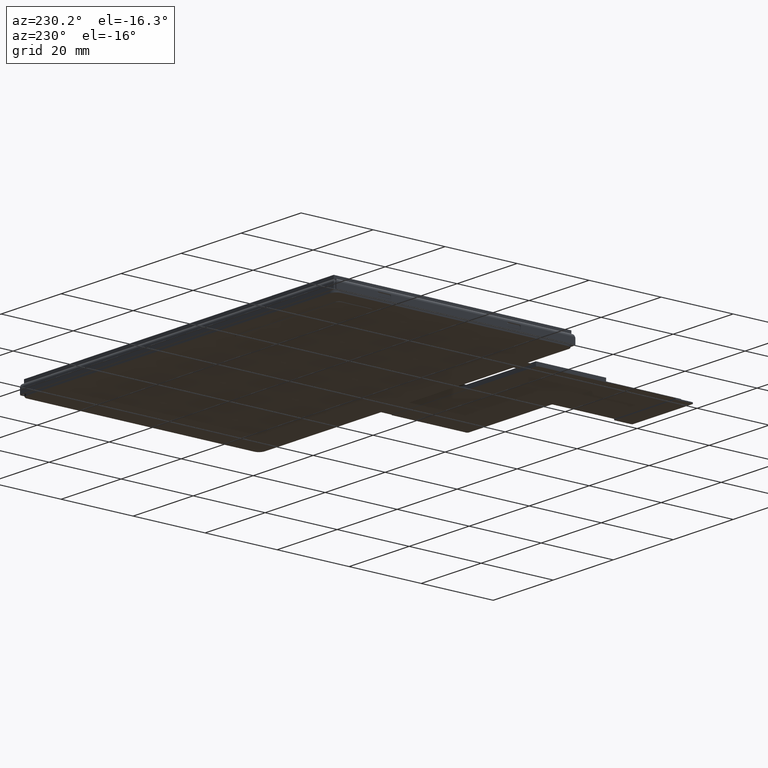
[diagram: clean part render]
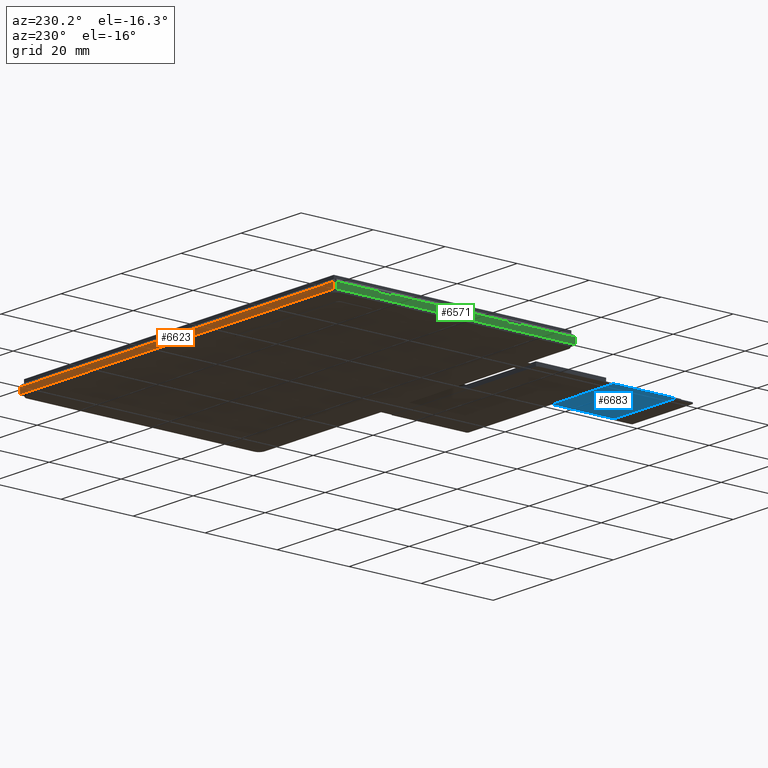
[diagram: same view with three faces highlighted in distinct colors, each labeled with its STEP entity id]
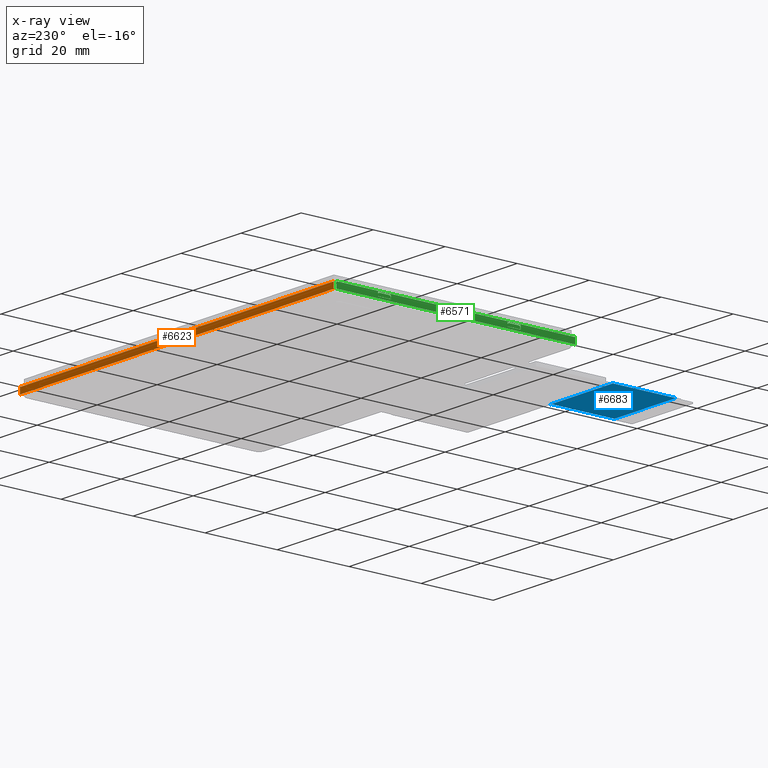
[diagram: x-ray of the same camera — body ghosted, the three highlighted faces saturated]
A machine part, auxiliary view with three faces highlighted in distinct colors.
The next image is the same camera in x-ray (body ghosted, the three faces saturated) — at least one of them is partly hidden behind the body in this view.
Their STEP definitions:

[orange] entity #6623 — the highlighted planar face has unit normal (0, 1, 0).
#149=PLANE('',#7033);
#475=FACE_OUTER_BOUND('',#836,.T.);
#836=EDGE_LOOP('',(#5087,#5088,#5089,#5090));
#1301=LINE('',#9570,#2194);
#1306=LINE('',#9579,#2199);
#1362=LINE('',#9917,#2255);
#1364=LINE('',#9920,#2257);
#2194=VECTOR('',#7740,104.6);
#2199=VECTOR('',#7747,1.67);
#2255=VECTOR('',#7849,1.67);
#2257=VECTOR('',#7853,104.6);
#3125=VERTEX_POINT('',#9568);
#3126=VERTEX_POINT('',#9569);
#3129=VERTEX_POINT('',#9578);
#3154=VERTEX_POINT('',#9837);
#3820=EDGE_CURVE('',#3125,#3126,#1301,.T.);
#3825=EDGE_CURVE('',#3125,#3129,#1306,.T.);
#3885=EDGE_CURVE('',#3126,#3154,#1362,.T.);
#3887=EDGE_CURVE('',#3129,#3154,#1364,.T.);
#5087=ORIENTED_EDGE('',*,*,#3887,.F.);
#5088=ORIENTED_EDGE('',*,*,#3825,.F.);
#5089=ORIENTED_EDGE('',*,*,#3820,.T.);
#5090=ORIENTED_EDGE('',*,*,#3885,.T.);
#6623=ADVANCED_FACE('',(#475),#149,.T.);
#7033=AXIS2_PLACEMENT_3D('',#9919,#7851,#7852);
#7740=DIRECTION('',(-1.,2.16453909658425E-16,0.));
#7747=DIRECTION('',(0.,0.,1.));
#7849=DIRECTION('',(0.,0.,1.));
#7851=DIRECTION('center_axis',(2.16453909658425E-16,1.,0.));
#7852=DIRECTION('ref_axis',(-1.,2.16453909658425E-16,0.));
#7853=DIRECTION('',(-1.,2.16453909658425E-16,0.));
#9568=CARTESIAN_POINT('',(52.2999999999996,31.1779999999999,-3.37));
#9569=CARTESIAN_POINT('',(-52.3000000000003,31.1779999999999,-3.37));
#9570=CARTESIAN_POINT('',(52.2999999999996,31.1779999999999,-3.37));
#9578=CARTESIAN_POINT('',(52.2999999999996,31.1779999999999,-1.7));
#9579=CARTESIAN_POINT('',(52.2999999999996,31.1779999999999,-3.37));
#9837=CARTESIAN_POINT('',(-52.3000000000003,31.1779999999999,-1.7));
#9917=CARTESIAN_POINT('',(-52.3000000000003,31.1779999999999,-3.37));
#9919=CARTESIAN_POINT('Origin',(52.6999999999998,31.1779999999999,-3.37));
#9920=CARTESIAN_POINT('',(52.2999999999996,31.1779999999999,-1.7));

[blue] entity #6683 — the highlighted planar face has unit normal (0, 0, 1).
#187=PLANE('',#7104);
#535=FACE_OUTER_BOUND('',#898,.T.);
#898=EDGE_LOOP('',(#5400,#5401,#5402,#5403,#5404));
#1448=LINE('',#10825,#2341);
#1460=LINE('',#10852,#2353);
#1464=LINE('',#10862,#2357);
#1465=LINE('',#10863,#2358);
#2341=VECTOR('',#8059,21.65);
#2353=VECTOR('',#8083,20.9);
#2357=VECTOR('',#8095,10.);
#2358=VECTOR('',#8096,22.05);
#2924=CIRCLE('',#7097,0.4);
#3195=VERTEX_POINT('',#10795);
#3206=VERTEX_POINT('',#10822);
#3207=VERTEX_POINT('',#10824);
#3210=VERTEX_POINT('',#10832);
#3218=VERTEX_POINT('',#10861);
#3997=EDGE_CURVE('',#3206,#3207,#1448,.T.);
#4003=EDGE_CURVE('',#3210,#3207,#2924,.T.);
#4012=EDGE_CURVE('',#3195,#3210,#1460,.T.);
#4017=EDGE_CURVE('',#3206,#3218,#1464,.T.);
#4018=EDGE_CURVE('',#3195,#3218,#1465,.T.);
#5400=ORIENTED_EDGE('',*,*,#4017,.T.);
#5401=ORIENTED_EDGE('',*,*,#4018,.F.);
#5402=ORIENTED_EDGE('',*,*,#4012,.T.);
#5403=ORIENTED_EDGE('',*,*,#4003,.T.);
#5404=ORIENTED_EDGE('',*,*,#3997,.F.);
#6683=ADVANCED_FACE('',(#535),#187,.F.);
#7097=AXIS2_PLACEMENT_3D('',#10836,#8068,#8069);
#7104=AXIS2_PLACEMENT_3D('',#10860,#8093,#8094);
#8059=DIRECTION('',(2.16453909658425E-16,1.,0.));
#8068=DIRECTION('center_axis',(0.,0.,1.));
#8069=DIRECTION('ref_axis',(2.16453909658425E-16,1.,0.));
#8083=DIRECTION('',(1.,-2.16453909658425E-16,0.));
#8093=DIRECTION('center_axis',(0.,0.,1.));
#8094=DIRECTION('ref_axis',(1.,-2.16453909658425E-16,0.));
#8095=DIRECTION('',(-1.,2.16453909658425E-16,0.));
#8096=DIRECTION('',(-2.16453909658425E-16,-1.,0.));
#10795=CARTESIAN_POINT('',(-34.1900000000001,-61.421999999753,-3.00000000000001));
#10822=CARTESIAN_POINT('',(-13.6900000000003,-78.8719999997501,-3.00000000000001));
#10824=CARTESIAN_POINT('',(-13.6900000000003,-61.8219999997531,-3.00000000000001));
#10825=CARTESIAN_POINT('',(-13.6900000000003,-83.47199999975,-3.00000000000001));
#10832=CARTESIAN_POINT('',(-13.2900000000004,-61.421999999753,-3.00000000000001));
#10836=CARTESIAN_POINT('Origin',(-13.2900000000004,-61.8219999997531,-3.00000000000001));
#10852=CARTESIAN_POINT('',(-34.1900000000001,-61.421999999753,-3.00000000000001));
#10860=CARTESIAN_POINT('Origin',(-11.0000000000002,-52.6707898480001,-3.00000000000001));
#10861=CARTESIAN_POINT('',(-34.1900000000001,-78.8719999997501,-3.00000000000001));
#10862=CARTESIAN_POINT('',(-22.595,-78.8719999997502,-3.00000000000001));
#10863=CARTESIAN_POINT('',(-34.1900000000001,-61.421999999753,-3.00000000000001));

[green] entity #6571 — the highlighted planar face has unit normal (1, -0, 0).
#56=FACE_BOUND('',#781,.T.);
#57=FACE_BOUND('',#782,.T.);
#106=PLANE('',#6966);
#423=FACE_OUTER_BOUND('',#780,.T.);
#780=EDGE_LOOP('',(#4811,#4812,#4813,#4814));
#781=EDGE_LOOP('',(#4815,#4816,#4817,#4818,#4819,#4820,#4821,#4822,#4823,
#4824));
#782=EDGE_LOOP('',(#4825,#4826,#4827,#4828,#4829,#4830,#4831,#4832,#4833,
#4834));
#1225=LINE('',#9366,#2118);
#1226=LINE('',#9368,#2119);
#1227=LINE('',#9370,#2120);
#1228=LINE('',#9371,#2121);
#1229=LINE('',#9374,#2122);
#1230=LINE('',#9376,#2123);
#1231=LINE('',#9380,#2124);
#1232=LINE('',#9384,#2125);
#1233=LINE('',#9386,#2126);
#1234=LINE('',#9388,#2127);
#1235=LINE('',#9390,#2128);
#1236=LINE('',#9391,#2129);
#1237=LINE('',#9394,#2130);
#1238=LINE('',#9396,#2131);
#1239=LINE('',#9400,#2132);
#1240=LINE('',#9404,#2133);
#1241=LINE('',#9406,#2134);
#1242=LINE('',#9408,#2135);
#1243=LINE('',#9410,#2136);
#1244=LINE('',#9411,#2137);
#2118=VECTOR('',#7580,66.3);
#2119=VECTOR('',#7581,1.67);
#2120=VECTOR('',#7582,66.3);
#2121=VECTOR('',#7583,1.67);
#2122=VECTOR('',#7584,3.6);
#2123=VECTOR('',#7585,0.35);
#2124=VECTOR('',#7588,2.6);
#2125=VECTOR('',#7591,1.05);
#2126=VECTOR('',#7592,3.6);
#2127=VECTOR('',#7593,1.05);
#2128=VECTOR('',#7594,3.6);
#2129=VECTOR('',#7595,1.05);
#2130=VECTOR('',#7596,3.6);
#2131=VECTOR('',#7597,0.35);
#2132=VECTOR('',#7600,2.6);
#2133=VECTOR('',#7603,1.05);
#2134=VECTOR('',#7604,3.6);
#2135=VECTOR('',#7605,1.05);
#2136=VECTOR('',#7606,3.6);
#2137=VECTOR('',#7607,1.05);
#2893=CIRCLE('',#6967,0.5);
#2894=CIRCLE('',#6968,0.5);
#2895=CIRCLE('',#6969,0.5);
#2896=CIRCLE('',#6970,0.5);
#3051=VERTEX_POINT('',#9364);
#3052=VERTEX_POINT('',#9365);
#3053=VERTEX_POINT('',#9367);
#3054=VERTEX_POINT('',#9369);
#3055=VERTEX_POINT('',#9372);
#3056=VERTEX_POINT('',#9373);
#3057=VERTEX_POINT('',#9375);
#3058=VERTEX_POINT('',#9377);
#3059=VERTEX_POINT('',#9379);
#3060=VERTEX_POINT('',#9381);
#3061=VERTEX_POINT('',#9383);
#3062=VERTEX_POINT('',#9385);
#3063=VERTEX_POINT('',#9387);
#3064=VERTEX_POINT('',#9389);
#3065=VERTEX_POINT('',#9392);
#3066=VERTEX_POINT('',#9393);
#3067=VERTEX_POINT('',#9395);
#3068=VERTEX_POINT('',#9397);
#3069=VERTEX_POINT('',#9399);
#3070=VERTEX_POINT('',#9401);
#3071=VERTEX_POINT('',#9403);
#3072=VERTEX_POINT('',#9405);
#3073=VERTEX_POINT('',#9407);
#3074=VERTEX_POINT('',#9409);
#3725=EDGE_CURVE('',#3051,#3052,#1225,.T.);
#3726=EDGE_CURVE('',#3053,#3051,#1226,.T.);
#3727=EDGE_CURVE('',#3053,#3054,#1227,.T.);
#3728=EDGE_CURVE('',#3054,#3052,#1228,.T.);
#3729=EDGE_CURVE('',#3055,#3056,#1229,.T.);
#3730=EDGE_CURVE('',#3057,#3055,#1230,.T.);
#3731=EDGE_CURVE('',#3058,#3057,#2893,.T.);
#3732=EDGE_CURVE('',#3059,#3058,#1231,.T.);
#3733=EDGE_CURVE('',#3060,#3059,#2894,.T.);
#3734=EDGE_CURVE('',#3060,#3061,#1232,.T.);
#3735=EDGE_CURVE('',#3061,#3062,#1233,.T.);
#3736=EDGE_CURVE('',#3062,#3063,#1234,.T.);
#3737=EDGE_CURVE('',#3063,#3064,#1235,.T.);
#3738=EDGE_CURVE('',#3064,#3056,#1236,.T.);
#3739=EDGE_CURVE('',#3065,#3066,#1237,.T.);
#3740=EDGE_CURVE('',#3067,#3065,#1238,.T.);
#3741=EDGE_CURVE('',#3068,#3067,#2895,.T.);
#3742=EDGE_CURVE('',#3069,#3068,#1239,.T.);
#3743=EDGE_CURVE('',#3070,#3069,#2896,.T.);
#3744=EDGE_CURVE('',#3070,#3071,#1240,.T.);
#3745=EDGE_CURVE('',#3071,#3072,#1241,.T.);
#3746=EDGE_CURVE('',#3072,#3073,#1242,.T.);
#3747=EDGE_CURVE('',#3073,#3074,#1243,.T.);
#3748=EDGE_CURVE('',#3074,#3066,#1244,.T.);
#4811=ORIENTED_EDGE('',*,*,#3725,.F.);
#4812=ORIENTED_EDGE('',*,*,#3726,.F.);
#4813=ORIENTED_EDGE('',*,*,#3727,.T.);
#4814=ORIENTED_EDGE('',*,*,#3728,.T.);
#4815=ORIENTED_EDGE('',*,*,#3729,.F.);
#4816=ORIENTED_EDGE('',*,*,#3730,.F.);
#4817=ORIENTED_EDGE('',*,*,#3731,.F.);
#4818=ORIENTED_EDGE('',*,*,#3732,.F.);
#4819=ORIENTED_EDGE('',*,*,#3733,.F.);
#4820=ORIENTED_EDGE('',*,*,#3734,.T.);
#4821=ORIENTED_EDGE('',*,*,#3735,.T.);
#4822=ORIENTED_EDGE('',*,*,#3736,.T.);
#4823=ORIENTED_EDGE('',*,*,#3737,.T.);
#4824=ORIENTED_EDGE('',*,*,#3738,.T.);
#4825=ORIENTED_EDGE('',*,*,#3739,.F.);
#4826=ORIENTED_EDGE('',*,*,#3740,.F.);
#4827=ORIENTED_EDGE('',*,*,#3741,.F.);
#4828=ORIENTED_EDGE('',*,*,#3742,.F.);
#4829=ORIENTED_EDGE('',*,*,#3743,.F.);
#4830=ORIENTED_EDGE('',*,*,#3744,.T.);
#4831=ORIENTED_EDGE('',*,*,#3745,.T.);
#4832=ORIENTED_EDGE('',*,*,#3746,.T.);
#4833=ORIENTED_EDGE('',*,*,#3747,.T.);
#4834=ORIENTED_EDGE('',*,*,#3748,.T.);
#6571=ADVANCED_FACE('',(#423,#56,#57),#106,.F.);
#6966=AXIS2_PLACEMENT_3D('',#9363,#7578,#7579);
#6967=AXIS2_PLACEMENT_3D('',#9378,#7586,#7587);
#6968=AXIS2_PLACEMENT_3D('',#9382,#7589,#7590);
#6969=AXIS2_PLACEMENT_3D('',#9398,#7598,#7599);
#6970=AXIS2_PLACEMENT_3D('',#9402,#7601,#7602);
#7578=DIRECTION('center_axis',(1.,-2.16453909658425E-16,0.));
#7579=DIRECTION('ref_axis',(0.,0.,-1.));
#7580=DIRECTION('',(-2.16453909658425E-16,-1.,0.));
#7581=DIRECTION('',(0.,0.,1.));
#7582=DIRECTION('',(-2.16453909658425E-16,-1.,0.));
#7583=DIRECTION('',(0.,0.,1.));
#7584=DIRECTION('',(2.16453909658425E-16,1.,0.));
#7585=DIRECTION('',(0.,0.,-1.));
#7586=DIRECTION('center_axis',(1.,-2.16453909658425E-16,0.));
#7587=DIRECTION('ref_axis',(0.,0.,1.));
#7588=DIRECTION('',(-2.16453909658425E-16,-1.,0.));
#7589=DIRECTION('center_axis',(1.,-2.16453909658425E-16,0.));
#7590=DIRECTION('ref_axis',(2.16453909658425E-16,1.,0.));
#7591=DIRECTION('',(0.,0.,1.));
#7592=DIRECTION('',(-2.16453909658425E-16,-1.,0.));
#7593=DIRECTION('',(0.,0.,-1.));
#7594=DIRECTION('',(2.16453909658425E-16,1.,0.));
#7595=DIRECTION('',(0.,0.,1.));
#7596=DIRECTION('',(2.16453909658425E-16,1.,0.));
#7597=DIRECTION('',(0.,0.,-1.));
#7598=DIRECTION('center_axis',(1.,-2.16453909658425E-16,0.));
#7599=DIRECTION('ref_axis',(0.,0.,1.));
#7600=DIRECTION('',(-2.16453909658425E-16,-1.,0.));
#7601=DIRECTION('center_axis',(1.,-2.16453909658425E-16,0.));
#7602=DIRECTION('ref_axis',(2.16453909658425E-16,1.,0.));
#7603=DIRECTION('',(0.,0.,1.));
#7604=DIRECTION('',(-2.16453909658425E-16,-1.,0.));
#7605=DIRECTION('',(0.,0.,-1.));
#7606=DIRECTION('',(2.16453909658425E-16,1.,0.));
#7607=DIRECTION('',(0.,0.,1.));
#9363=CARTESIAN_POINT('Origin',(-52.7000000000004,-2.3220000000002,-4.1));
#9364=CARTESIAN_POINT('',(-52.7000000000002,30.7779999999998,-1.7));
#9365=CARTESIAN_POINT('',(-52.7000000000002,-35.5220000000001,-1.7));
#9366=CARTESIAN_POINT('',(-52.7000000000002,30.7779999999998,-1.7));
#9367=CARTESIAN_POINT('',(-52.7000000000002,30.7779999999998,-3.37));
#9368=CARTESIAN_POINT('',(-52.7000000000002,30.7779999999998,-3.37));
#9369=CARTESIAN_POINT('',(-52.7000000000002,-35.5220000000001,-3.37));
#9370=CARTESIAN_POINT('',(-52.7000000000002,30.7779999999998,-3.37));
#9371=CARTESIAN_POINT('',(-52.7000000000002,-35.5220000000001,-3.37));
#9372=CARTESIAN_POINT('',(-52.7000000000004,-20.3320000000002,-2.85));
#9373=CARTESIAN_POINT('',(-52.7000000000002,-16.7820000000002,-2.85));
#9374=CARTESIAN_POINT('',(-52.7000000000004,-20.3320000000002,-2.85));
#9375=CARTESIAN_POINT('',(-52.7000000000004,-20.3320000000002,-2.5));
#9376=CARTESIAN_POINT('',(-52.7000000000004,-20.3320000000002,-2.5));
#9377=CARTESIAN_POINT('',(-52.7000000000004,-19.8320000000002,-2.));
#9378=CARTESIAN_POINT('Origin',(-52.7000000000004,-19.8320000000002,-2.5));
#9379=CARTESIAN_POINT('',(-52.7000000000004,-17.2320000000002,-2.));
#9380=CARTESIAN_POINT('',(-52.7000000000004,-17.2320000000002,-2.));
#9381=CARTESIAN_POINT('',(-52.7000000000002,-16.7820000000002,-2.282055052823));
#9382=CARTESIAN_POINT('Origin',(-52.7000000000004,-17.2320000000002,-2.5));
#9383=CARTESIAN_POINT('',(-52.7000000000002,-16.7820000000002,-1.83141009879099));
#9384=CARTESIAN_POINT('',(-52.7000000000002,-16.7820000000002,-2.881410098791));
#9385=CARTESIAN_POINT('',(-52.7000000000002,-20.3820000000002,-1.83141009879099));
#9386=CARTESIAN_POINT('',(-52.7000000000002,-16.7820000000002,-1.83141009879099));
#9387=CARTESIAN_POINT('',(-52.7000000000002,-20.3820000000002,-2.881410098791));
#9388=CARTESIAN_POINT('',(-52.7000000000002,-20.3820000000002,-1.83141009879099));
#9389=CARTESIAN_POINT('',(-52.7000000000002,-16.7820000000002,-2.881410098791));
#9390=CARTESIAN_POINT('',(-52.7000000000002,-20.3820000000002,-2.881410098791));
#9391=CARTESIAN_POINT('',(-52.7000000000002,-16.7820000000002,-2.881410098791));
#9392=CARTESIAN_POINT('',(-52.7000000000004,15.6879999999998,-2.85));
#9393=CARTESIAN_POINT('',(-52.7000000000002,19.2379999999999,-2.85));
#9394=CARTESIAN_POINT('',(-52.7000000000004,15.6879999999998,-2.85));
#9395=CARTESIAN_POINT('',(-52.7000000000004,15.6879999999998,-2.5));
#9396=CARTESIAN_POINT('',(-52.7000000000004,15.6879999999998,-2.5));
#9397=CARTESIAN_POINT('',(-52.7000000000004,16.1879999999998,-2.));
#9398=CARTESIAN_POINT('Origin',(-52.7000000000004,16.1879999999998,-2.5));
#9399=CARTESIAN_POINT('',(-52.7000000000004,18.7879999999998,-2.));
#9400=CARTESIAN_POINT('',(-52.7000000000004,18.7879999999998,-2.));
#9401=CARTESIAN_POINT('',(-52.7000000000002,19.2379999999999,-2.282055052823));
#9402=CARTESIAN_POINT('Origin',(-52.7000000000004,18.7879999999998,-2.5));
#9403=CARTESIAN_POINT('',(-52.7000000000002,19.2379999999999,-1.83141009879099));
#9404=CARTESIAN_POINT('',(-52.7000000000002,19.2379999999999,-2.881410098791));
#9405=CARTESIAN_POINT('',(-52.7000000000002,15.6379999999999,-1.83141009879099));
#9406=CARTESIAN_POINT('',(-52.7000000000002,19.2379999999999,-1.83141009879099));
#9407=CARTESIAN_POINT('',(-52.7000000000002,15.6379999999999,-2.881410098791));
#9408=CARTESIAN_POINT('',(-52.7000000000002,15.6379999999999,-1.83141009879099));
#9409=CARTESIAN_POINT('',(-52.7000000000002,19.2379999999999,-2.881410098791));
#9410=CARTESIAN_POINT('',(-52.7000000000002,15.6379999999999,-2.881410098791));
#9411=CARTESIAN_POINT('',(-52.7000000000002,19.2379999999999,-2.881410098791));